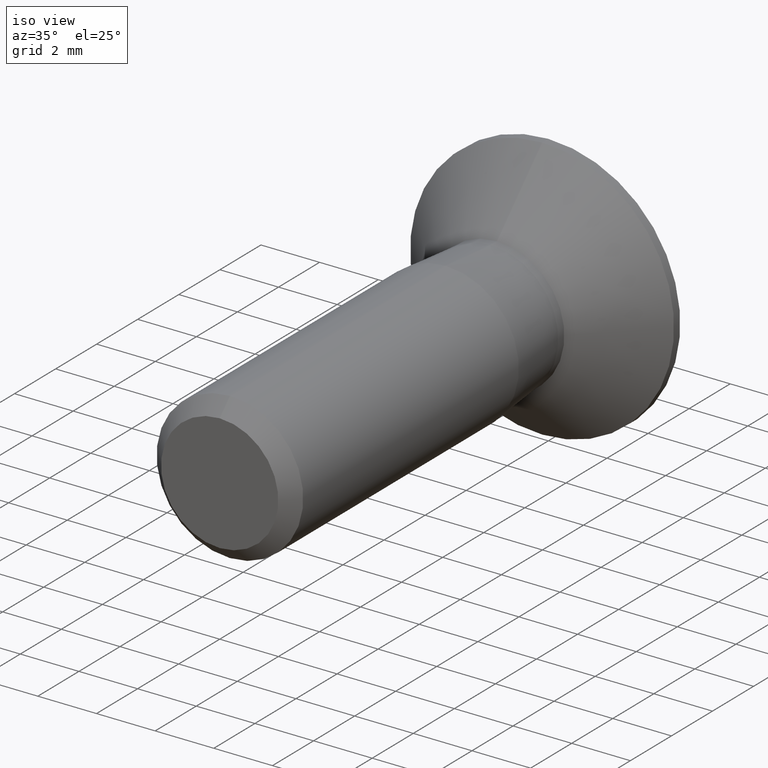
[diagram: clean part render]
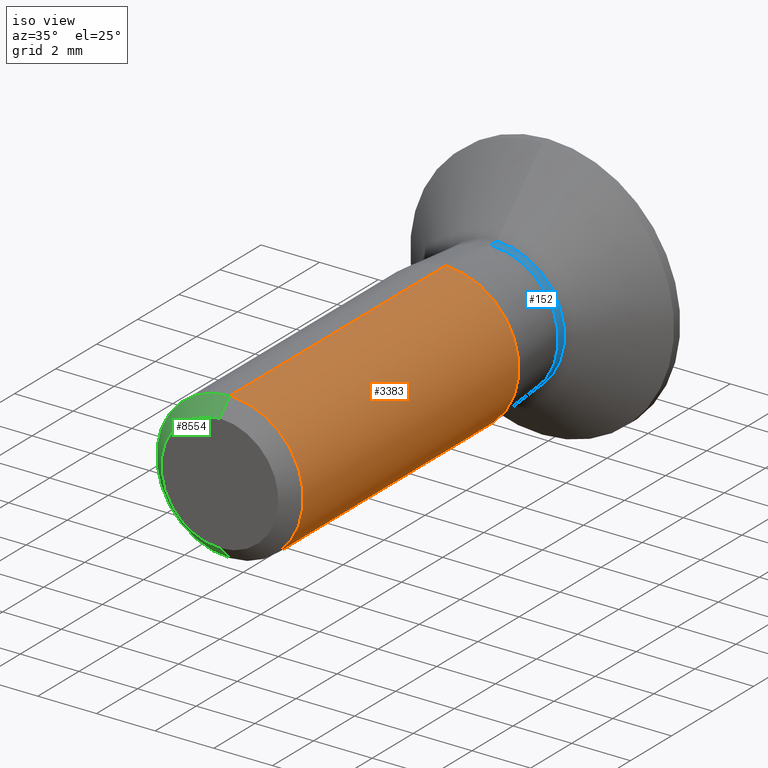
[diagram: same view with three faces highlighted in distinct colors, each labeled with its STEP entity id]
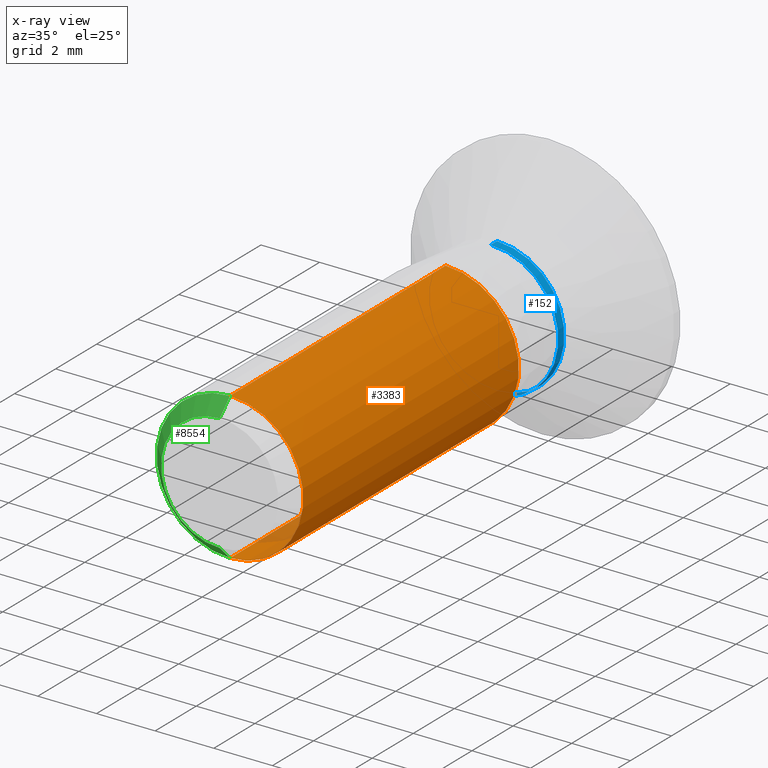
[diagram: x-ray of the same camera — body ghosted, the three highlighted faces saturated]
A machine part, iso view with three faces highlighted in distinct colors.
The next image is the same camera in x-ray (body ghosted, the three faces saturated) — at least one of them is partly hidden behind the body in this view.
Their STEP definitions:

[orange] entity #3383 — the highlighted cylindrical surface (partial cylindrical patch) has radius 2.5 mm, axis along (-0, -1, -0).
#449 = DIRECTION ( 'NONE',  ( -0.000000000000000000, -1.000000000000000000, -0.000000000000000000 ) ) ;
#540 = CARTESIAN_POINT ( 'NONE',  ( 0.000000000000000000, 0.000000000000000000, 0.000000000000000000 ) ) ;
#789 = LINE ( 'NONE', #9346, #13642 ) ;
#1669 = CARTESIAN_POINT ( 'NONE',  ( 0.000000000000000000, 0.5000000000000004441, 0.000000000000000000 ) ) ;
#1936 = CARTESIAN_POINT ( 'NONE',  ( 0.000000000000000000, 11.00000000000000000, -2.499999999999999112 ) ) ;
#2227 = VERTEX_POINT ( 'NONE', #13446 ) ;
#2345 = CARTESIAN_POINT ( 'NONE',  ( 3.061616997868383634E-16, 0.000000000000000000, 2.500000000000000444 ) ) ;
#3342 = EDGE_CURVE ( 'NONE', #10551, #7933, #8870, .T. ) ;
#3383 = ADVANCED_FACE ( 'NONE', ( #7247 ), #13149, .T. ) ;
#4467 = DIRECTION ( 'NONE',  ( -0.000000000000000000, -1.000000000000000000, -0.000000000000000000 ) ) ;
#5031 = AXIS2_PLACEMENT_3D ( 'NONE', #1669, #9819, #11928 ) ;
#5166 = EDGE_LOOP ( 'NONE', ( #7728, #6914, #14705, #14316 ) ) ;
#5252 = DIRECTION ( 'NONE',  ( 0.000000000000000000, 0.000000000000000000, -1.000000000000000000 ) ) ;
#5512 = DIRECTION ( 'NONE',  ( 0.000000000000000000, 0.000000000000000000, -1.000000000000000000 ) ) ;
#5735 = LINE ( 'NONE', #2345, #10919 ) ;
#5758 = EDGE_CURVE ( 'NONE', #10551, #2227, #789, .T. ) ;
#6378 = EDGE_CURVE ( 'NONE', #8862, #2227, #11325, .T. ) ;
#6620 = AXIS2_PLACEMENT_3D ( 'NONE', #7386, #449, #5252 ) ;
#6914 = ORIENTED_EDGE ( 'NONE', *, *, #9099, .T. ) ;
#7247 = FACE_OUTER_BOUND ( 'NONE', #5166, .T. ) ;
#7386 = CARTESIAN_POINT ( 'NONE',  ( 0.000000000000000000, 11.00000000000000000, 0.000000000000000000 ) ) ;
#7728 = ORIENTED_EDGE ( 'NONE', *, *, #3342, .T. ) ;
#7933 = VERTEX_POINT ( 'NONE', #13831 ) ;
#8862 = VERTEX_POINT ( 'NONE', #12809 ) ;
#8870 = CIRCLE ( 'NONE', #6620, 2.499999999999999112 ) ;
#9099 = EDGE_CURVE ( 'NONE', #7933, #8862, #5735, .T. ) ;
#9346 = CARTESIAN_POINT ( 'NONE',  ( 0.000000000000000000, 0.000000000000000000, -2.500000000000000444 ) ) ;
#9819 = DIRECTION ( 'NONE',  ( 0.000000000000000000, 1.000000000000000000, 0.000000000000000000 ) ) ;
#9984 = DIRECTION ( 'NONE',  ( -0.000000000000000000, -1.000000000000000000, -0.000000000000000000 ) ) ;
#10551 = VERTEX_POINT ( 'NONE', #1936 ) ;
#10919 = VECTOR ( 'NONE', #4467, 1000.000000000000000 ) ;
#11325 = CIRCLE ( 'NONE', #5031, 2.500000000000000444 ) ;
#11928 = DIRECTION ( 'NONE',  ( 0.000000000000000000, 0.000000000000000000, -1.000000000000000000 ) ) ;
#12809 = CARTESIAN_POINT ( 'NONE',  ( 3.061616997868383634E-16, 0.5000000000000004441, 2.500000000000000444 ) ) ;
#13149 = CYLINDRICAL_SURFACE ( 'NONE', #14168, 2.500000000000000444 ) ;
#13446 = CARTESIAN_POINT ( 'NONE',  ( 0.000000000000000000, 0.5000000000000004441, -2.500000000000000444 ) ) ;
#13642 = VECTOR ( 'NONE', #13834, 1000.000000000000000 ) ;
#13831 = CARTESIAN_POINT ( 'NONE',  ( 3.061616997868382155E-16, 11.00000000000000000, 2.499999999999999112 ) ) ;
#13834 = DIRECTION ( 'NONE',  ( -0.000000000000000000, -1.000000000000000000, -0.000000000000000000 ) ) ;
#14168 = AXIS2_PLACEMENT_3D ( 'NONE', #540, #9984, #5512 ) ;
#14316 = ORIENTED_EDGE ( 'NONE', *, *, #5758, .F. ) ;
#14705 = ORIENTED_EDGE ( 'NONE', *, *, #6378, .T. ) ;

[blue] entity #152 — the highlighted cylindrical surface (partial cylindrical patch) has radius 2.3 mm, axis along (-0, -1, -0).
#152 = ADVANCED_FACE ( 'NONE', ( #11431 ), #12325, .T. ) ;
#352 = CARTESIAN_POINT ( 'NONE',  ( 4.163799117100999573E-16, 13.50000000000000000, -2.299999999999998490 ) ) ;
#1217 = CARTESIAN_POINT ( 'NONE',  ( 0.000000000000000000, 13.50000000000000000, 0.000000000000000000 ) ) ;
#1336 = EDGE_CURVE ( 'NONE', #5751, #11028, #10879, .T. ) ;
#2136 = CIRCLE ( 'NONE', #7768, 2.299999999999998490 ) ;
#2466 = DIRECTION ( 'NONE',  ( -0.000000000000000000, -1.000000000000000000, -0.000000000000000000 ) ) ;
#3341 = DIRECTION ( 'NONE',  ( 0.000000000000000000, 0.000000000000000000, -1.000000000000000000 ) ) ;
#3470 = VERTEX_POINT ( 'NONE', #4151 ) ;
#3626 = DIRECTION ( 'NONE',  ( 0.000000000000000000, 0.000000000000000000, -1.000000000000000000 ) ) ;
#3733 = VECTOR ( 'NONE', #4921, 1000.000000000000000 ) ;
#3843 = DIRECTION ( 'NONE',  ( -0.000000000000000000, -1.000000000000000000, -0.000000000000000000 ) ) ;
#4151 = CARTESIAN_POINT ( 'NONE',  ( 2.816687638038910577E-16, 13.19999999999999929, 2.299999999999998490 ) ) ;
#4291 = ORIENTED_EDGE ( 'NONE', *, *, #9845, .F. ) ;
#4867 = CARTESIAN_POINT ( 'NONE',  ( 2.816687638038910577E-16, 0.000000000000000000, 2.299999999999998490 ) ) ;
#4921 = DIRECTION ( 'NONE',  ( -0.000000000000000000, -1.000000000000000000, -0.000000000000000000 ) ) ;
#5751 = VERTEX_POINT ( 'NONE', #352 ) ;
#6078 = CARTESIAN_POINT ( 'NONE',  ( 0.000000000000000000, 13.19999999999999929, -2.299999999999998490 ) ) ;
#6083 = CARTESIAN_POINT ( 'NONE',  ( 0.000000000000000000, 0.000000000000000000, -2.299999999999998490 ) ) ;
#6541 = DIRECTION ( 'NONE',  ( 0.000000000000000000, 0.000000000000000000, -1.000000000000000000 ) ) ;
#7474 = CARTESIAN_POINT ( 'NONE',  ( 0.000000000000000000, 13.50000000000000000, 2.299999999999998490 ) ) ;
#7768 = AXIS2_PLACEMENT_3D ( 'NONE', #8638, #9874, #6541 ) ;
#7988 = ORIENTED_EDGE ( 'NONE', *, *, #1336, .T. ) ;
#8631 = AXIS2_PLACEMENT_3D ( 'NONE', #1217, #13708, #3341 ) ;
#8638 = CARTESIAN_POINT ( 'NONE',  ( 0.000000000000000000, 13.19999999999999929, 0.000000000000000000 ) ) ;
#8886 = VERTEX_POINT ( 'NONE', #6078 ) ;
#9130 = CARTESIAN_POINT ( 'NONE',  ( 0.000000000000000000, 0.000000000000000000, 0.000000000000000000 ) ) ;
#9759 = AXIS2_PLACEMENT_3D ( 'NONE', #9130, #2466, #3626 ) ;
#9845 = EDGE_CURVE ( 'NONE', #8886, #3470, #2136, .T. ) ;
#9874 = DIRECTION ( 'NONE',  ( -0.000000000000000000, -1.000000000000000000, -0.000000000000000000 ) ) ;
#10879 = CIRCLE ( 'NONE', #8631, 2.299999999999998490 ) ;
#11028 = VERTEX_POINT ( 'NONE', #7474 ) ;
#11406 = VECTOR ( 'NONE', #3843, 1000.000000000000000 ) ;
#11431 = FACE_OUTER_BOUND ( 'NONE', #13794, .T. ) ;
#12053 = EDGE_CURVE ( 'NONE', #5751, #8886, #12829, .T. ) ;
#12119 = LINE ( 'NONE', #4867, #3733 ) ;
#12325 = CYLINDRICAL_SURFACE ( 'NONE', #9759, 2.299999999999998490 ) ;
#12432 = EDGE_CURVE ( 'NONE', #11028, #3470, #12119, .T. ) ;
#12829 = LINE ( 'NONE', #6083, #11406 ) ;
#13708 = DIRECTION ( 'NONE',  ( -0.000000000000000000, -1.000000000000000000, -0.000000000000000000 ) ) ;
#13794 = EDGE_LOOP ( 'NONE', ( #7988, #13979, #4291, #14225 ) ) ;
#13979 = ORIENTED_EDGE ( 'NONE', *, *, #12432, .T. ) ;
#14225 = ORIENTED_EDGE ( 'NONE', *, *, #12053, .F. ) ;

[green] entity #8554 — the highlighted conical surface has half-angle 45 deg.
#164 = VECTOR ( 'NONE', #14606, 1000.000000000000000 ) ;
#368 = DIRECTION ( 'NONE',  ( 0.000000000000000000, 0.7071067811865487940, 0.7071067811865463515 ) ) ;
#438 = DIRECTION ( 'NONE',  ( -0.000000000000000000, -1.000000000000000000, -0.000000000000000000 ) ) ;
#830 = EDGE_LOOP ( 'NONE', ( #5508, #8083, #7567, #7375 ) ) ;
#1257 = FACE_OUTER_BOUND ( 'NONE', #830, .T. ) ;
#2227 = VERTEX_POINT ( 'NONE', #13446 ) ;
#2382 = VERTEX_POINT ( 'NONE', #7051 ) ;
#2482 = CARTESIAN_POINT ( 'NONE',  ( 2.449293598294708880E-16, 3.061616997868388565E-17, -2.000000000000001776 ) ) ;
#3046 = EDGE_CURVE ( 'NONE', #7900, #2227, #5948, .T. ) ;
#3243 = CONICAL_SURFACE ( 'NONE', #13156, 2.000000000000001776, 0.7853981633974466137 ) ;
#4707 = AXIS2_PLACEMENT_3D ( 'NONE', #5148, #438, #6138 ) ;
#5148 = CARTESIAN_POINT ( 'NONE',  ( 0.000000000000000000, 3.061616997868388565E-17, 0.000000000000000000 ) ) ;
#5506 = DIRECTION ( 'NONE',  ( 0.000000000000000000, 1.000000000000000000, 0.000000000000000000 ) ) ;
#5508 = ORIENTED_EDGE ( 'NONE', *, *, #3046, .F. ) ;
#5948 = LINE ( 'NONE', #2482, #164 ) ;
#6138 = DIRECTION ( 'NONE',  ( 0.000000000000000000, 0.000000000000000000, -1.000000000000000000 ) ) ;
#6403 = DIRECTION ( 'NONE',  ( 0.000000000000000000, 1.000000000000000000, 0.000000000000000000 ) ) ;
#6545 = DIRECTION ( 'NONE',  ( 0.000000000000000000, 0.000000000000000000, 1.000000000000000000 ) ) ;
#7051 = CARTESIAN_POINT ( 'NONE',  ( 0.000000000000000000, 3.061616997868388565E-17, 2.000000000000001776 ) ) ;
#7351 = EDGE_CURVE ( 'NONE', #2227, #8862, #8259, .T. ) ;
#7375 = ORIENTED_EDGE ( 'NONE', *, *, #7351, .F. ) ;
#7567 = ORIENTED_EDGE ( 'NONE', *, *, #7673, .T. ) ;
#7673 = EDGE_CURVE ( 'NONE', #2382, #8862, #8250, .T. ) ;
#7856 = CIRCLE ( 'NONE', #4707, 2.000000000000001776 ) ;
#7900 = VERTEX_POINT ( 'NONE', #7965 ) ;
#7965 = CARTESIAN_POINT ( 'NONE',  ( 2.755455298081546257E-16, 3.061616997868388565E-17, -2.000000000000001776 ) ) ;
#8083 = ORIENTED_EDGE ( 'NONE', *, *, #10901, .F. ) ;
#8250 = LINE ( 'NONE', #14046, #14313 ) ;
#8259 = CIRCLE ( 'NONE', #8867, 2.500000000000000444 ) ;
#8554 = ADVANCED_FACE ( 'NONE', ( #1257 ), #3243, .T. ) ;
#8862 = VERTEX_POINT ( 'NONE', #12809 ) ;
#8867 = AXIS2_PLACEMENT_3D ( 'NONE', #10996, #6403, #9787 ) ;
#8893 = CARTESIAN_POINT ( 'NONE',  ( 0.000000000000000000, 3.061616997868388565E-17, 0.000000000000000000 ) ) ;
#9787 = DIRECTION ( 'NONE',  ( 0.000000000000000000, 0.000000000000000000, -1.000000000000000000 ) ) ;
#10901 = EDGE_CURVE ( 'NONE', #2382, #7900, #7856, .T. ) ;
#10996 = CARTESIAN_POINT ( 'NONE',  ( 0.000000000000000000, 0.5000000000000004441, 0.000000000000000000 ) ) ;
#12809 = CARTESIAN_POINT ( 'NONE',  ( 3.061616997868383634E-16, 0.5000000000000004441, 2.500000000000000444 ) ) ;
#13156 = AXIS2_PLACEMENT_3D ( 'NONE', #8893, #5506, #6545 ) ;
#13446 = CARTESIAN_POINT ( 'NONE',  ( 0.000000000000000000, 0.5000000000000004441, -2.500000000000000444 ) ) ;
#14046 = CARTESIAN_POINT ( 'NONE',  ( 0.000000000000000000, 3.061616997868388565E-17, 2.000000000000001776 ) ) ;
#14313 = VECTOR ( 'NONE', #368, 1000.000000000000000 ) ;
#14606 = DIRECTION ( 'NONE',  ( 8.659560562354919300E-17, 0.7071067811865487940, -0.7071067811865463515 ) ) ;